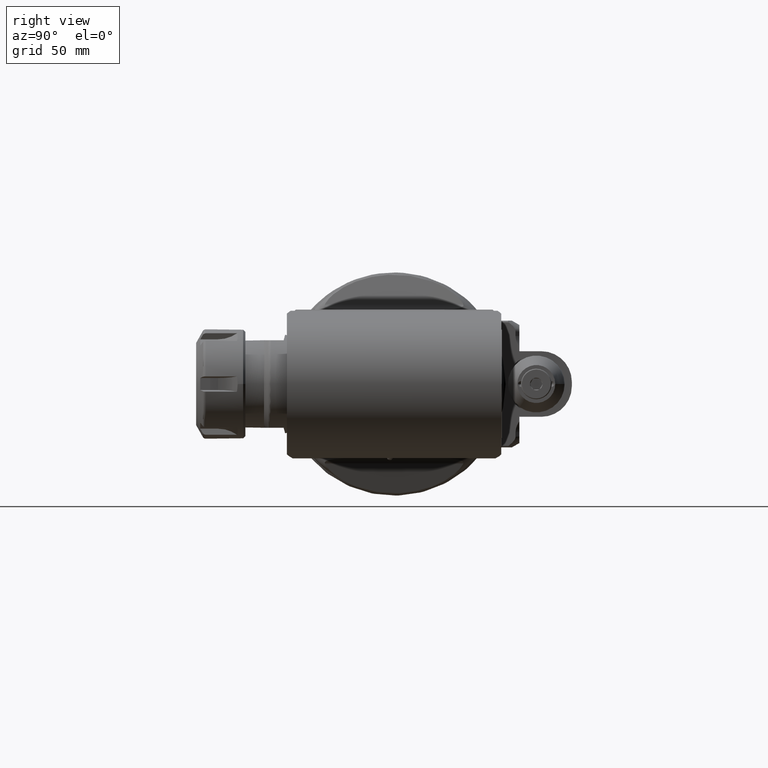
[diagram: clean part render]
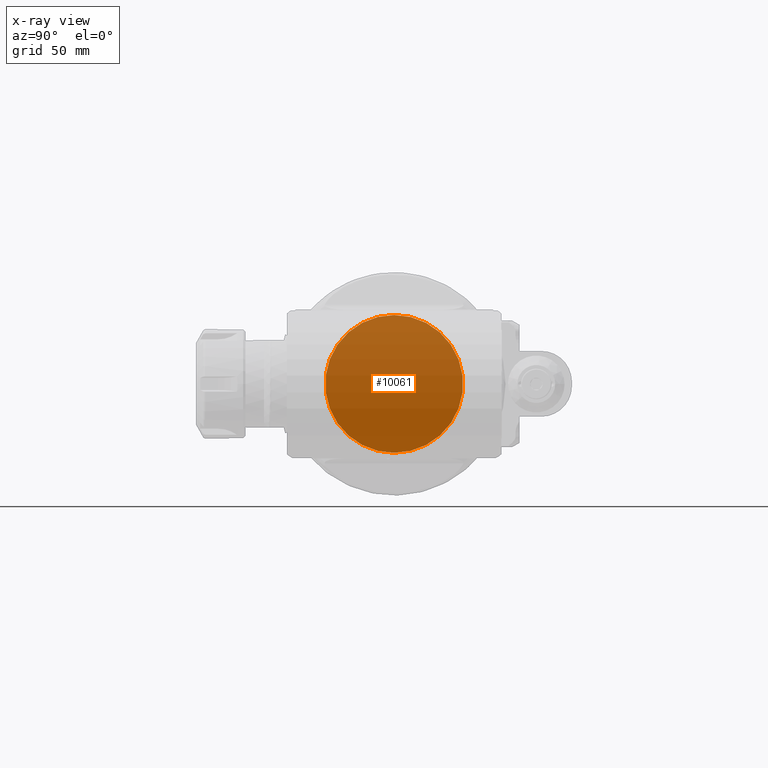
[diagram: x-ray — body ghosted, one internal face saturated and labeled with its STEP entity id]
A machine part, right view, then the same camera in x-ray: the body is ghosted and one INTERNAL B-rep face — a face not visible from any outside direction — is saturated and labeled: STEP entity #10061.
In plain terms, the highlighted planar face has unit normal (-1, -0, 0).
Its self-contained STEP definition (entity closure, byte-faithful):
#2429=FACE_OUTER_BOUND('',#2985,.T.);
#2985=EDGE_LOOP('',(#7042));
#3582=CIRCLE('',#10714,31.5);
#4088=VERTEX_POINT('',#19316);
#5270=EDGE_CURVE('',#4088,#4088,#3582,.T.);
#7042=ORIENTED_EDGE('',*,*,#5270,.T.);
#9742=PLANE('',#10715);
#10061=ADVANCED_FACE('',(#2429),#9742,.T.);
#10714=AXIS2_PLACEMENT_3D('',#19318,#11829,#11830);
#10715=AXIS2_PLACEMENT_3D('',#19319,#11831,#11832);
#11829=DIRECTION('center_axis',(-1.,0.,0.));
#11830=DIRECTION('ref_axis',(0.,-1.,0.));
#11831=DIRECTION('center_axis',(-1.,0.,0.));
#11832=DIRECTION('ref_axis',(0.,0.,1.));
#19316=CARTESIAN_POINT('',(148.063097000004,-3.85763741731334E-15,31.4999999999933));
#19318=CARTESIAN_POINT('Origin',(148.063097,0.,0.));
#19319=CARTESIAN_POINT('Origin',(148.063097,0.,26.65));